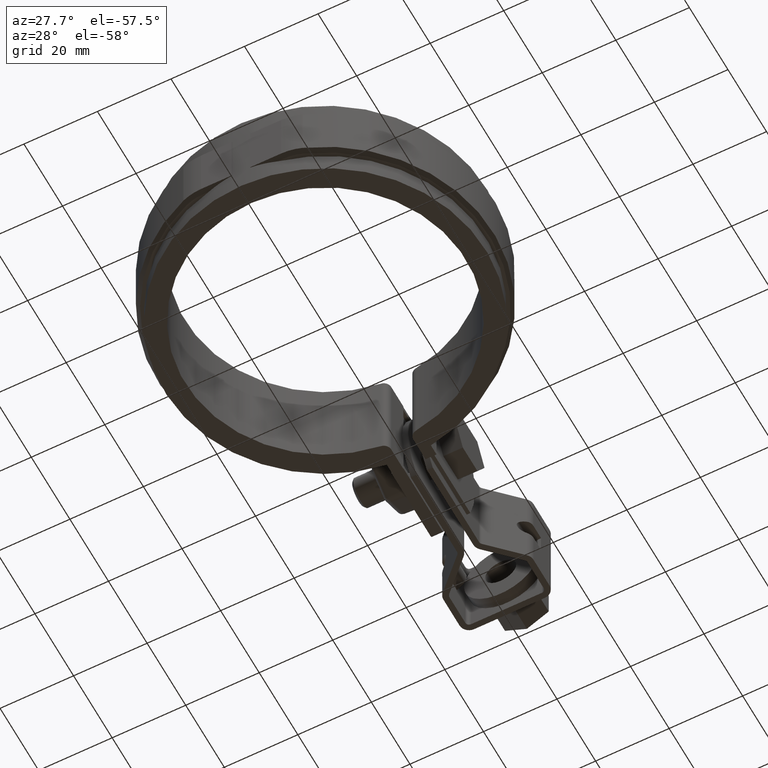
[diagram: clean part render]
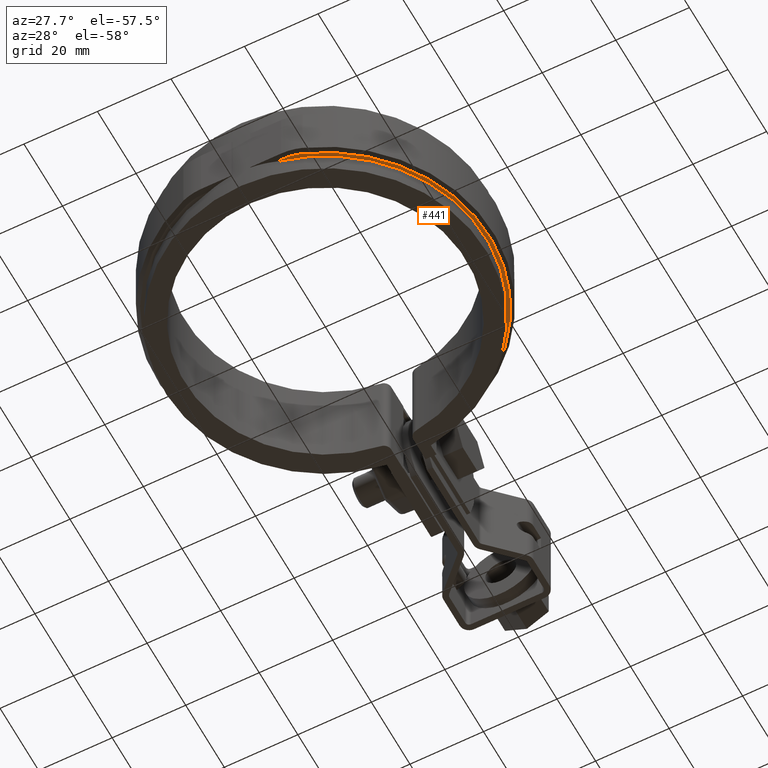
[diagram: same view with one face highlighted and labeled with its STEP entity id]
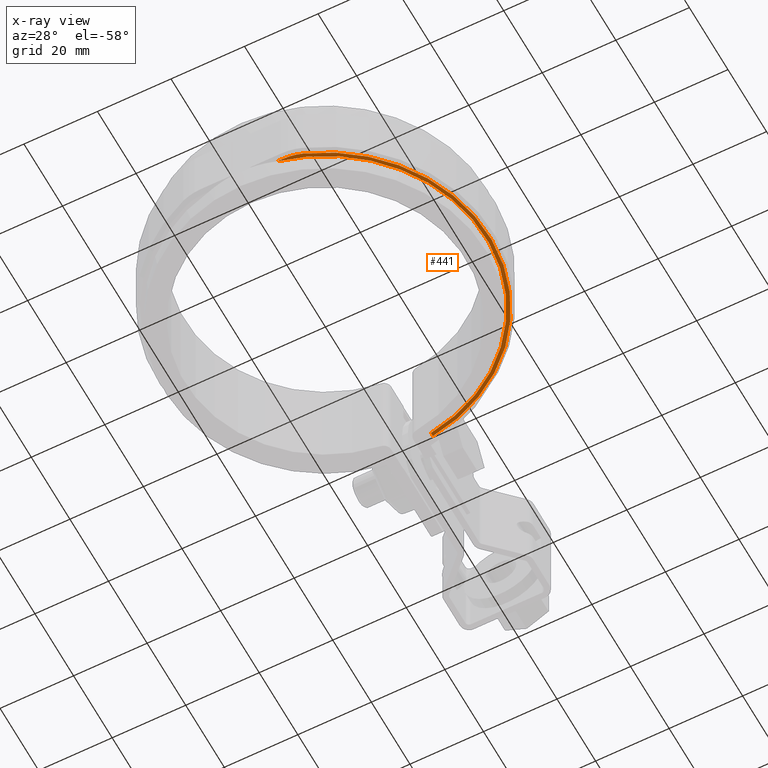
[diagram: x-ray of the same camera — body ghosted, the highlighted face saturated]
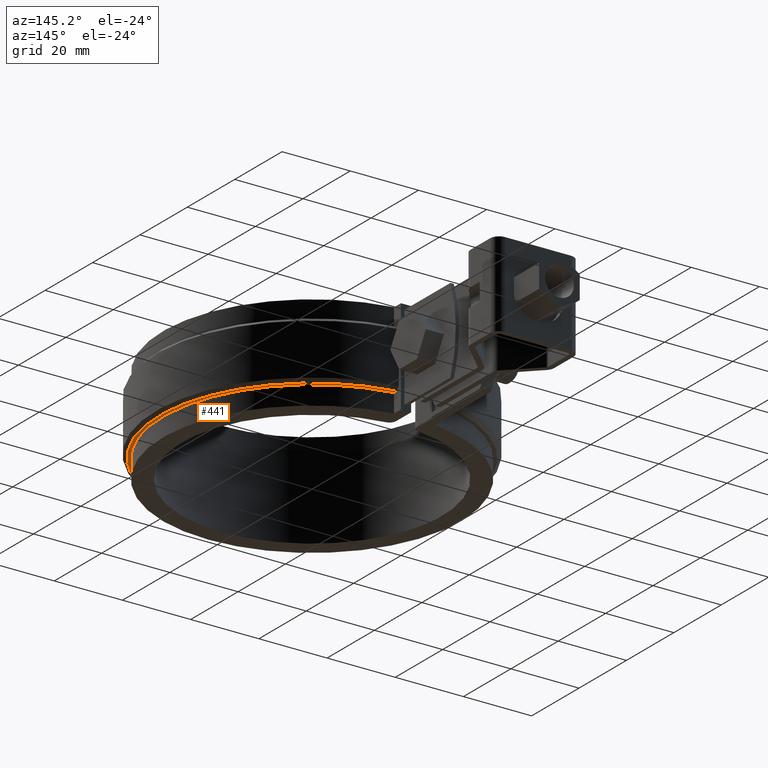
[diagram: same view with one face highlighted and labeled with its STEP entity id]
A machine part, auxiliary view. The second image highlights one B-rep face of the part: STEP entity #441.
The next image is the same camera in x-ray: the body ghosted, the highlighted face saturated — about 0% of this face is hidden behind the body in this view.
A second angle (auxiliary view) of the same face is appended — the face is thin or edge-on in the first view.
In plain terms, the highlighted planar face has unit normal (0, 0, 1).
Its self-contained STEP definition (entity closure, byte-faithful):
#441 = ADVANCED_FACE( '', ( #860 ), #861, .F. );
#860 = FACE_OUTER_BOUND( '', #2045, .T. );
#861 = PLANE( '', #2046 );
#2045 = EDGE_LOOP( '', ( #4003, #4004, #4005, #4006, #4007 ) );
#2046 = AXIS2_PLACEMENT_3D( '', #4008, #4009, #4010 );
#4003 = ORIENTED_EDGE( '', *, *, #6400, .T. );
#4004 = ORIENTED_EDGE( '', *, *, #6401, .T. );
#4005 = ORIENTED_EDGE( '', *, *, #6402, .T. );
#4006 = ORIENTED_EDGE( '', *, *, #6371, .T. );
#4007 = ORIENTED_EDGE( '', *, *, #6403, .T. );
#4008 = CARTESIAN_POINT( '', ( 3.46944695195361E-015, 3.46944695195361E-014, -8.50000000000000 ) );
#4009 = DIRECTION( '', ( 0.000000000000000, 0.000000000000000, 1.00000000000000 ) );
#4010 = DIRECTION( '', ( 1.00000000000000, 0.000000000000000, 0.000000000000000 ) );
#6371 = EDGE_CURVE( '', #7459, #7457, #7460, .F. );
#6400 = EDGE_CURVE( '', #7504, #7505, #7506, .F. );
#6401 = EDGE_CURVE( '', #7505, #7507, #7508, .T. );
#6402 = EDGE_CURVE( '', #7507, #7459, #7509, .T. );
#6403 = EDGE_CURVE( '', #7457, #7504, #7510, .F. );
#7457 = VERTEX_POINT( '', #10662 );
#7459 = VERTEX_POINT( '', #10667 );
#7460 = LINE( '', #10668, #10669 );
#7504 = VERTEX_POINT( '', #10776 );
#7505 = VERTEX_POINT( '', #10777 );
#7506 = CIRCLE( '', #10778, 14.0000000000000 );
#7507 = VERTEX_POINT( '', #10779 );
#7508 = LINE( '', #10780, #10781 );
#7509 = CIRCLE( '', #10782, 43.6500000000000 );
#7510 = CIRCLE( '', #10783, 44.6500000000000 );
#10662 = CARTESIAN_POINT( '', ( 6.00000000000000, 44.2450279692533, -8.50000000000000 ) );
#10667 = CARTESIAN_POINT( '', ( 6.00000000000000, 43.2356623633778, -8.50000000000000 ) );
#10668 = CARTESIAN_POINT( '', ( 6.00000000000000, 3.43301775895810E-014, -8.50000000000000 ) );
#10669 = VECTOR( '', #12667, 1000.00000000000 );
#10776 = CARTESIAN_POINT( '', ( 15.8647535103757, -41.7364600326264, -8.50000000000000 ) );
#10777 = CARTESIAN_POINT( '', ( 10.8903627120496, -42.6499999999999, -8.50000000000000 ) );
#10778 = AXIS2_PLACEMENT_3D( '', #12694, #12695, #12696 );
#10779 = CARTESIAN_POINT( '', ( 9.28977932999533, -42.6499999999999, -8.50000000000000 ) );
#10780 = CARTESIAN_POINT( '', ( 4.06133460195690E-015, -42.6499999999999, -8.50000000000000 ) );
#10781 = VECTOR( '', #12697, 1000.00000000000 );
#10782 = AXIS2_PLACEMENT_3D( '', #12698, #12699, #12700 );
#10783 = AXIS2_PLACEMENT_3D( '', #12701, #12702, #12703 );
#12667 = DIRECTION( '', ( -6.07153216591882E-017, -1.00000000000000, 0.000000000000000 ) );
#12694 = CARTESIAN_POINT( '', ( 10.8903627120496, -28.6499999999999, -8.50000000000000 ) );
#12695 = DIRECTION( '', ( 0.000000000000000, 0.000000000000000, 1.00000000000000 ) );
#12696 = DIRECTION( '', ( 1.00000000000000, 0.000000000000000, 0.000000000000000 ) );
#12697 = DIRECTION( '', ( -1.00000000000000, -1.38777878078145E-017, 0.000000000000000 ) );
#12698 = CARTESIAN_POINT( '', ( 0.000000000000000, 0.000000000000000, -8.50000000000000 ) );
#12699 = DIRECTION( '', ( 0.000000000000000, 0.000000000000000, 1.00000000000000 ) );
#12700 = DIRECTION( '', ( 1.00000000000000, 0.000000000000000, 0.000000000000000 ) );
#12701 = CARTESIAN_POINT( '', ( 3.46944695195361E-015, 3.46944695195361E-014, -8.50000000000000 ) );
#12702 = DIRECTION( '', ( 0.000000000000000, 0.000000000000000, 1.00000000000000 ) );
#12703 = DIRECTION( '', ( 1.00000000000000, 0.000000000000000, 0.000000000000000 ) );